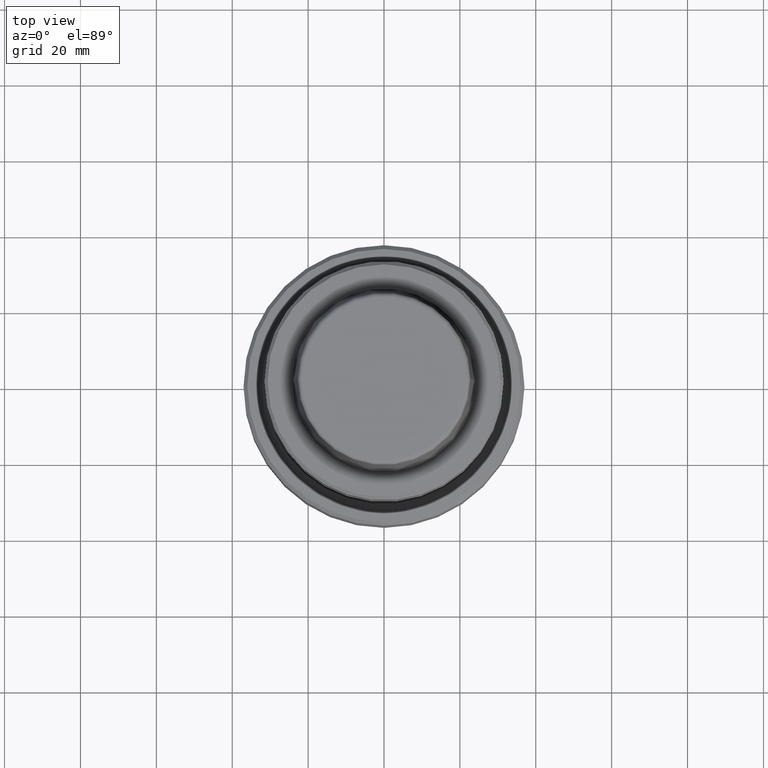
[diagram: clean part render]
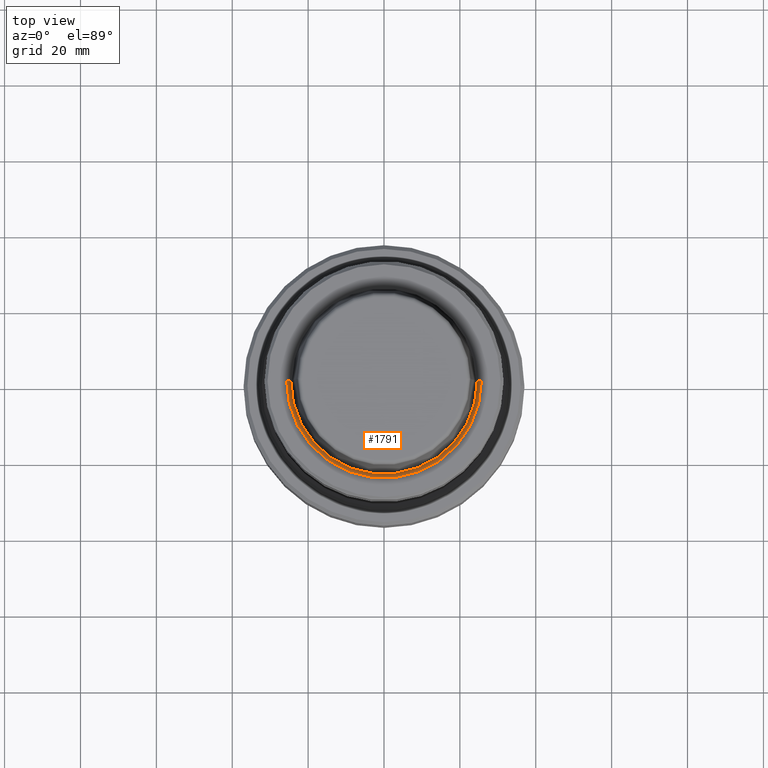
[diagram: same view with one face highlighted and labeled with its STEP entity id]
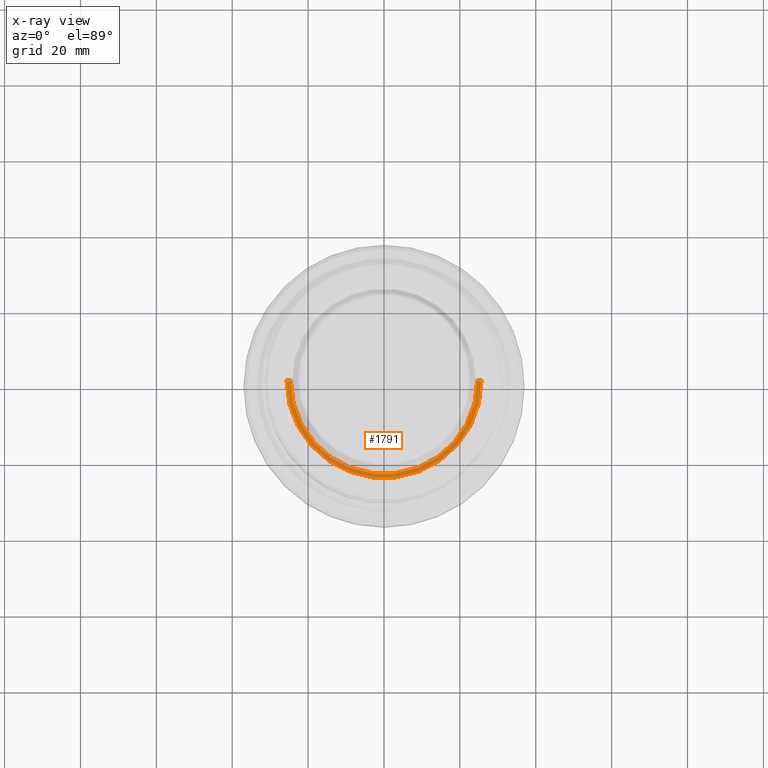
[diagram: x-ray of the same camera — body ghosted, the highlighted face saturated]
A machine part, top view. The second image highlights one B-rep face of the part: STEP entity #1791.
The next image is the same camera in x-ray: the body ghosted, the highlighted face saturated — about 0% of this face is hidden behind the body in this view.
In plain terms, the highlighted conical surface has half-angle 80 deg.
Its self-contained STEP definition (entity closure, byte-faithful):
#4 = CARTESIAN_POINT ( 'NONE',  ( -25.67674956203913400, 3.144494916365943300E-015, -4.440892098500626200E-013 ) ) ;
#28 = EDGE_CURVE ( 'NONE', #1634, #925, #497, .T. ) ;
#116 = DIRECTION ( 'NONE',  ( 0.9848077530123733300, 0.0000000000000000000, 0.1736481776659927500 ) ) ;
#175 = ORIENTED_EDGE ( 'NONE', *, *, #986, .T. ) ;
#230 = CIRCLE ( 'NONE', #1612, 24.59418890659947700 ) ;
#300 = CIRCLE ( 'NONE', #620, 25.67674956203913400 ) ;
#311 = CARTESIAN_POINT ( 'NONE',  ( 24.59418890659947700, 0.0000000000000000000, -0.1908846518068330100 ) ) ;
#403 = EDGE_CURVE ( 'NONE', #1634, #949, #230, .T. ) ;
#420 = CONICAL_SURFACE ( 'NONE', #922, 24.59418890659947700, 1.396263401596415700 ) ;
#423 = CARTESIAN_POINT ( 'NONE',  ( -24.59418890659947700, 3.011919472209239600E-015, -0.1908846518068330100 ) ) ;
#454 = VECTOR ( 'NONE', #1528, 1000.000000000000200 ) ;
#497 = LINE ( 'NONE', #423, #454 ) ;
#620 = AXIS2_PLACEMENT_3D ( 'NONE', #628, #711, #2018 ) ;
#628 = CARTESIAN_POINT ( 'NONE',  ( 0.0000000000000000000, 0.0000000000000000000, -4.440892098500626200E-013 ) ) ;
#679 = CARTESIAN_POINT ( 'NONE',  ( 25.67674956203913400, 0.0000000000000000000, -4.440892098500626200E-013 ) ) ;
#711 = DIRECTION ( 'NONE',  ( -0.0000000000000000000, -0.0000000000000000000, 1.000000000000000000 ) ) ;
#712 = ORIENTED_EDGE ( 'NONE', *, *, #28, .T. ) ;
#734 = VECTOR ( 'NONE', #116, 1000.000000000000200 ) ;
#782 = LINE ( 'NONE', #1547, #734 ) ;
#816 = CARTESIAN_POINT ( 'NONE',  ( 0.0000000000000000000, 0.0000000000000000000, -0.1908846518068330100 ) ) ;
#910 = DIRECTION ( 'NONE',  ( 1.000000000000000000, 0.0000000000000000000, 0.0000000000000000000 ) ) ;
#922 = AXIS2_PLACEMENT_3D ( 'NONE', #1739, #1531, #910 ) ;
#925 = VERTEX_POINT ( 'NONE', #4 ) ;
#949 = VERTEX_POINT ( 'NONE', #311 ) ;
#986 = EDGE_CURVE ( 'NONE', #925, #1497, #300, .T. ) ;
#1034 = DIRECTION ( 'NONE',  ( -0.0000000000000000000, -0.0000000000000000000, 1.000000000000000000 ) ) ;
#1091 = EDGE_LOOP ( 'NONE', ( #1811, #712, #175, #1914 ) ) ;
#1271 = DIRECTION ( 'NONE',  ( 1.000000000000000000, 0.0000000000000000000, 0.0000000000000000000 ) ) ;
#1497 = VERTEX_POINT ( 'NONE', #679 ) ;
#1528 = DIRECTION ( 'NONE',  ( -0.9848077530123733300, 1.206041662502100300E-016, 0.1736481776659927500 ) ) ;
#1531 = DIRECTION ( 'NONE',  ( -0.0000000000000000000, -0.0000000000000000000, 1.000000000000000000 ) ) ;
#1547 = CARTESIAN_POINT ( 'NONE',  ( 24.59418890659947700, 0.0000000000000000000, -0.1908846518068330100 ) ) ;
#1612 = AXIS2_PLACEMENT_3D ( 'NONE', #816, #1034, #1271 ) ;
#1634 = VERTEX_POINT ( 'NONE', #1994 ) ;
#1739 = CARTESIAN_POINT ( 'NONE',  ( 0.0000000000000000000, 0.0000000000000000000, -0.1908846518068330100 ) ) ;
#1744 = FACE_OUTER_BOUND ( 'NONE', #1091, .T. ) ;
#1791 = ADVANCED_FACE ( 'NONE', ( #1744 ), #420, .F. ) ;
#1811 = ORIENTED_EDGE ( 'NONE', *, *, #403, .F. ) ;
#1861 = EDGE_CURVE ( 'NONE', #949, #1497, #782, .T. ) ;
#1914 = ORIENTED_EDGE ( 'NONE', *, *, #1861, .F. ) ;
#1994 = CARTESIAN_POINT ( 'NONE',  ( -24.59418890659947700, 3.078207194287591200E-015, -0.1908846518068330100 ) ) ;
#2018 = DIRECTION ( 'NONE',  ( 1.000000000000000000, 0.0000000000000000000, 0.0000000000000000000 ) ) ;